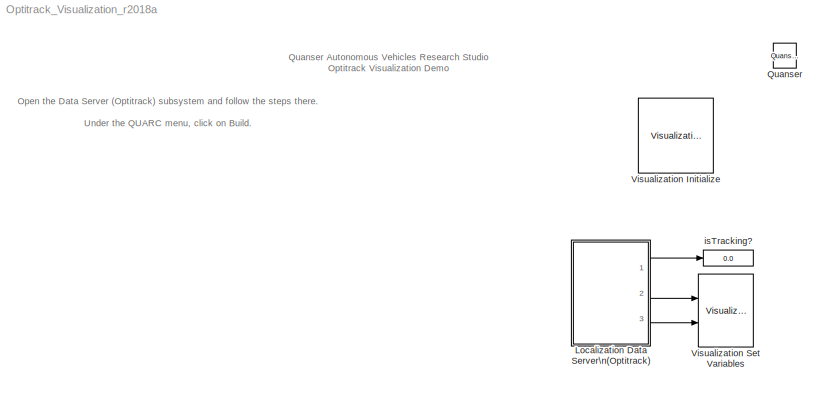
MODEL Optitrack_Visualization_r2018a
KIND model
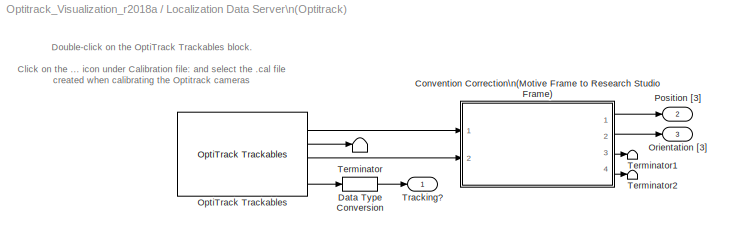
BLOCK [SubSystem] Localization Data Server\n(Optitrack) 
  Ports = [0, 3]
  RequestExecContextInheritance = off
  SID = 165
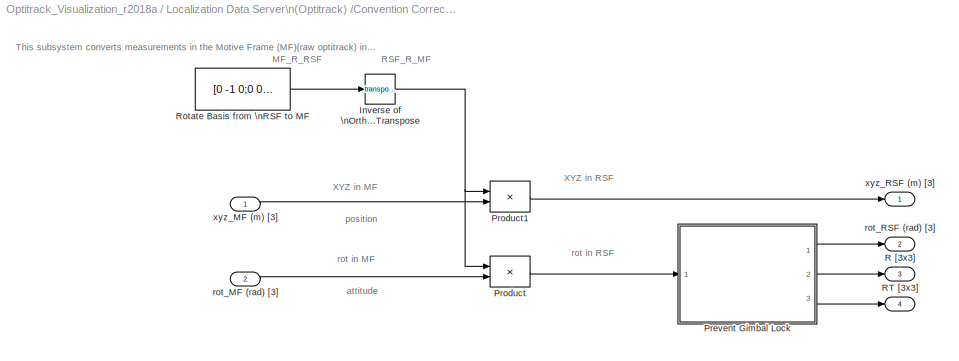
BLOCK [SubSystem] Localization Data Server\n(Optitrack) /Convention Correction\n(Motive Frame to Research Studio Frame)
  Ports = [2, 4]
  RequestExecContextInheritance = off
  SID = 211
BLOCK [Math] Localization Data Server\n(Optitrack) /Convention Correction\n(Motive Frame to Research Studio Frame)/Inverse of \nOrthonormal \nMatrix\nis its \nTranspose
  Operator = transpose
  Ports = [1, 1]
  SID = 214
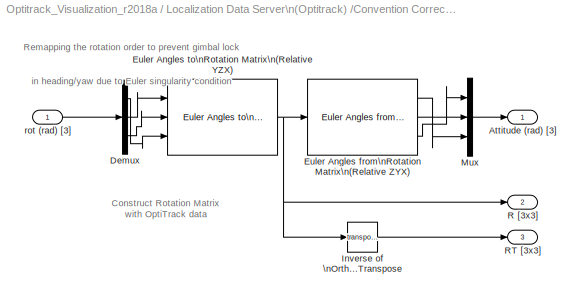
BLOCK [SubSystem] Localization Data Server\n(Optitrack) /Convention Correction\n(Motive Frame to Research Studio Frame)/Prevent Gimbal Lock
  Ports = [1, 3]
  RequestExecContextInheritance = off
  SID = 215
BLOCK [Outport] Localization Data Server\n(Optitrack) /Convention Correction\n(Motive Frame to Research Studio Frame)/Prevent Gimbal Lock/Attitude (rad) [3]
  SID = 221
  VectorParamsAs1DForOutWhenUnconnected = off
BLOCK [Demux] Localization Data Server\n(Optitrack) /Convention Correction\n(Motive Frame to Research Studio Frame)/Prevent Gimbal Lock/Demux
  Outputs = 3
  Ports = [1, 3]
  SID = 217
BLOCK [Reference] Localization Data Server\n(Optitrack) /Convention Correction\n(Motive Frame to Research Studio Frame)/Prevent Gimbal Lock/Euler Angles from\nRotation Matrix\n(Relative ZYX)  REF=quarc_library/Math Operations/Matrices/Euler Angles from\nRotation Matrix
  MultiThreadCoSim = auto
  Ports = [1, 3]
  SID = 218
  SourceBlock = quarc_library/Math Operations/Matrices/Euler Angles from\nRotation Matrix
  SourceProductName = QUARC Targets
  SourceType = Euler Angles from Rotation Matrix
  menu_order = Relative Z-Y-X
BLOCK [Reference] Localization Data Server\n(Optitrack) /Convention Correction\n(Motive Frame to Research Studio Frame)/Prevent Gimbal Lock/Euler Angles to\nRotation Matrix\n(Relative YZX)  REF=quarc_library/Math Operations/Matrices/Euler Angles to\nRotation Matrix
  MultiThreadCoSim = auto
  Ports = [3, 1]
  SID = 219
  SourceBlock = quarc_library/Math Operations/Matrices/Euler Angles to\nRotation Matrix
  SourceProductName = QUARC Targets
  SourceType = Euler Angles to Rotation Matrix
  menu_order = Relative Y-Z-X
BLOCK [Math] Localization Data Server\n(Optitrack) /Convention Correction\n(Motive Frame to Research Studio Frame)/Prevent Gimbal Lock/Inverse of \nOrthonormal \nMatrix\nis its \nTranspose
  Operator = transpose
  Ports = [1, 1]
  SID = 240
BLOCK [Mux] Localization Data Server\n(Optitrack) /Convention Correction\n(Motive Frame to Research Studio Frame)/Prevent Gimbal Lock/Mux
  DisplayOption = bar
  Inputs = 3
  Ports = [3, 1]
  SID = 220
BLOCK [Outport] Localization Data Server\n(Optitrack) /Convention Correction\n(Motive Frame to Research Studio Frame)/Prevent Gimbal Lock/R [3x3]
  Port = 2
  SID = 238
  VectorParamsAs1DForOutWhenUnconnected = off
BLOCK [Outport] Localization Data Server\n(Optitrack) /Convention Correction\n(Motive Frame to Research Studio Frame)/Prevent Gimbal Lock/RT [3x3]
  Port = 3
  SID = 239
  VectorParamsAs1DForOutWhenUnconnected = off
BLOCK [Inport] Localization Data Server\n(Optitrack) /Convention Correction\n(Motive Frame to Research Studio Frame)/Prevent Gimbal Lock/rot (rad) [3]
  SID = 216
BLOCK [Product] Localization Data Server\n(Optitrack) /Convention Correction\n(Motive Frame to Research Studio Frame)/Product
  Multiplication = Matrix(*)
  Ports = [2, 1]
  SID = 223
BLOCK [Product] Localization Data Server\n(Optitrack) /Convention Correction\n(Motive Frame to Research Studio Frame)/Product1
  Multiplication = Matrix(*)
  Ports = [2, 1]
  SID = 224
BLOCK [Outport] Localization Data Server\n(Optitrack) /Convention Correction\n(Motive Frame to Research Studio Frame)/R [3x3]
  Port = 3
  SID = 243
  VectorParamsAs1DForOutWhenUnconnected = off
BLOCK [Outport] Localization Data Server\n(Optitrack) /Convention Correction\n(Motive Frame to Research Studio Frame)/RT [3x3]
  Port = 4
  SID = 244
  VectorParamsAs1DForOutWhenUnconnected = off
BLOCK [Constant] Localization Data Server\n(Optitrack) /Convention Correction\n(Motive Frame to Research Studio Frame)/Rotate Basis from \nRSF to MF
  SID = 225
  Value = [0 -1 0;0 0 1;-1 0 0]
BLOCK [Inport] Localization Data Server\n(Optitrack) /Convention Correction\n(Motive Frame to Research Studio Frame)/rot_MF (rad) [3]
  Port = 2
  SID = 213
BLOCK [Outport] Localization Data Server\n(Optitrack) /Convention Correction\n(Motive Frame to Research Studio Frame)/rot_RSF (rad) [3]
  Port = 2
  SID = 227
  VectorParamsAs1DForOutWhenUnconnected = off
BLOCK [Inport] Localization Data Server\n(Optitrack) /Convention Correction\n(Motive Frame to Research Studio Frame)/xyz_MF (m) [3]
  SID = 212
BLOCK [Outport] Localization Data Server\n(Optitrack) /Convention Correction\n(Motive Frame to Research Studio Frame)/xyz_RSF (m) [3]
  SID = 226
  VectorParamsAs1DForOutWhenUnconnected = off
BLOCK [DataTypeConversion] Localization Data Server\n(Optitrack) /Data Type Conversion
  RndMeth = Floor
  SID = 166
  SaturateOnIntegerOverflow = off
BLOCK [Reference] Localization Data Server\n(Optitrack) /OptiTrack Trackables  REF=quarc_library/Devices/Third-Party/NaturalPoint/OptiTrack/OptiTrack Trackables
  MultiThreadCoSim = auto
  Ports = [0, 4]
  SID = 169
  SourceBlock = quarc_library/Devices/Third-Party/NaturalPoint/OptiTrack/OptiTrack Trackables
  SourceProductName = QUARC Targets
  SourceType = OptiTrack Rigid Body Position
  active = off
  calibration_file = <userpath><path> mm) 2018-05-08 10.cal
  rigid_body_file = <userpath><path>
  rigid_body_ids = [1]
  sample_time = qc_get_step_size*10
BLOCK [Outport] Localization Data Server\n(Optitrack) /Orientation [3]
  Port = 3
  SID = 173
  VectorParamsAs1DForOutWhenUnconnected = off
BLOCK [Outport] Localization Data Server\n(Optitrack) /Position [3]
  Port = 2
  SID = 171
  VectorParamsAs1DForOutWhenUnconnected = off
BLOCK [Terminator] Localization Data Server\n(Optitrack) /Terminator
  SID = 170
BLOCK [Terminator] Localization Data Server\n(Optitrack) /Terminator1
  SID = 245
BLOCK [Terminator] Localization Data Server\n(Optitrack) /Terminator2
  SID = 246
BLOCK [Outport] Localization Data Server\n(Optitrack) /Tracking?
  SID = 172
  VectorParamsAs1DForOutWhenUnconnected = off
BLOCK [Reference] Quanser  REF=quarc_library/Logos/Quanser
  Ports = []
  RTWMemSecDataConstants = Inherit from model
  RTWMemSecDataInternal = Inherit from model
  RTWMemSecDataParameters = Inherit from model
  RTWMemSecFuncExecute = Inherit from model
  RTWMemSecFuncInitTerm = Inherit from model
  SID = 162
  SourceBlock = quarc_library/Logos/Quanser
  SourceProductName = QUARC Targets
  SourceType = Powered by Quanser
BLOCK [Reference] Visualization Initialize  REF=quarc_library/User Interface/Visualization/Visualization Initialize
  AttributesFormatString = %<object_name>
  MultiThreadCoSim = auto
  Ports = []
  SID = 154
  SourceBlock = quarc_library/User Interface/Visualization/Visualization Initialize
  SourceProductName = QUARC Targets
  SourceType = Visualization Initialize
  apply_uri_to_all_configs = off
  client_receive_size = 1000000
  client_send_size = 1000
  close_on_stop = on
  derive_from_server = on
  initial_values = single([ 0 0 0 0 0 0 0 0 0 0 0 0 ])
  object_name = POSE_Check
  open_on_start = on
  scene_file = POSE_Check.xml
  server_receive_size = 1000
  server_send_size = 1000000
  uri = {'normal','';'Configuration','shmem://%m:2';}
  variables = [ 60 61 80 81 ]
BLOCK [Reference] Visualization Set Variables  REF=quarc_library/User Interface/Visualization/Visualization Set Variables
  AttributesFormatString = (%<object_name>)
  MultiThreadCoSim = auto
  Ports = [2]
  SID = 155
  SourceBlock = quarc_library/User Interface/Visualization/Visualization Set Variables
  SourceProductName = QUARC Targets
  SourceType = Visualization Set Variables
  actor_name = {'actor.RefFrame.BodyFixed.OptiTrack/Position';'actor.RefFrame.BodyFixed.OptiTrack/Orientation'}
  data_type = [ 0 0 ]
  length = [ 1 1 ]
  object_name = POSE_Check
  offset = [ 0 0 ]
  sample_time = visualization_get_frame_period
BLOCK [Display] isTracking?
  Decimation = 1
  Ports = [1]
  SID = 188
ANNOTATION (root): \n \n Open the Data Server (Optitrack) subsystem and follow the steps there. \n Under the QUARC menu, click on Build. \n Place the QDrone in the workspace (no battery, QDrone is OFF). \n \n Under the QUARC menu, click on Start . \n The isTracking? display should show 1, which indicates that the localization system is tracking the vehicle's pose. \n \n The Visualization should show 3 frames of refe...<+1052ch>
ANNOTATION (root): \n \n Quanser Autonomous Vehicles Research Studio Optitrack Visualization Demo
ANNOTATION Localization Data Server\n(Optitrack) : \n \n Double-click on the OptiTrack Trackables block. \n Click on the ... icon under Calibration file: and select the .cal file created when calibrating the Optitrack cameras \n Click on the ... icon under Trackables definition file: and select the trackables file created when defining rigid bodies (for the QDrone you are about to use) \n
ANNOTATION Localization Data Server\n(Optitrack) /Convention Correction\n(Motive Frame to Research Studio Frame): \n \n This subsystem converts measurements in the Motive Frame (MF)(raw optitrack) into the Research Studio Frame (RSF).
ANNOTATION Localization Data Server\n(Optitrack) /Convention Correction\n(Motive Frame to Research Studio Frame): MF_R_RSF
ANNOTATION Localization Data Server\n(Optitrack) /Convention Correction\n(Motive Frame to Research Studio Frame): RSF_R_MF
ANNOTATION Localization Data Server\n(Optitrack) /Convention Correction\n(Motive Frame to Research Studio Frame): XYZ in MF
ANNOTATION Localization Data Server\n(Optitrack) /Convention Correction\n(Motive Frame to Research Studio Frame): XYZ in RSF
ANNOTATION Localization Data Server\n(Optitrack) /Convention Correction\n(Motive Frame to Research Studio Frame): attitude
ANNOTATION Localization Data Server\n(Optitrack) /Convention Correction\n(Motive Frame to Research Studio Frame): position
ANNOTATION Localization Data Server\n(Optitrack) /Convention Correction\n(Motive Frame to Research Studio Frame): rot in MF
ANNOTATION Localization Data Server\n(Optitrack) /Convention Correction\n(Motive Frame to Research Studio Frame): rot in RSF
ANNOTATION Localization Data Server\n(Optitrack) /Convention Correction\n(Motive Frame to Research Studio Frame)/Prevent Gimbal Lock: \n \n Remapping the rotation order to prevent gimbal lock \n in heading/yaw due to Euler singularity condition
ANNOTATION Localization Data Server\n(Optitrack) /Convention Correction\n(Motive Frame to Research Studio Frame)/Prevent Gimbal Lock: Construct Rotation Matrix\nwith OptiTrack data
NET Localization Data Server\n(Optitrack) /Convention Correction\n(Motive Frame to Research Studio Frame)/Inverse of \nOrthonormal \nMatrix\nis its \nTranspose:1 -> Localization Data Server\n(Optitrack) /Convention Correction\n(Motive Frame to Research Studio Frame)/Product1:1, Localization Data Server\n(Optitrack) /Convention Correction\n(Motive Frame to Research Studio Frame)/Product:1
LINE Localization Data Server\n(Optitrack) /Convention Correction\n(Motive Frame to Research Studio Frame)/Prevent Gimbal Lock/Demux:1 -> Localization Data Server\n(Optitrack) /Convention Correction\n(Motive Frame to Research Studio Frame)/Prevent Gimbal Lock/Euler Angles to\nRotation Matrix\n(Relative YZX):3
LINE Localization Data Server\n(Optitrack) /Convention Correction\n(Motive Frame to Research Studio Frame)/Prevent Gimbal Lock/Demux:2 -> Localization Data Server\n(Optitrack) /Convention Correction\n(Motive Frame to Research Studio Frame)/Prevent Gimbal Lock/Euler Angles to\nRotation Matrix\n(Relative YZX):1
LINE Localization Data Server\n(Optitrack) /Convention Correction\n(Motive Frame to Research Studio Frame)/Prevent Gimbal Lock/Demux:3 -> Localization Data Server\n(Optitrack) /Convention Correction\n(Motive Frame to Research Studio Frame)/Prevent Gimbal Lock/Euler Angles to\nRotation Matrix\n(Relative YZX):2
LINE Localization Data Server\n(Optitrack) /Convention Correction\n(Motive Frame to Research Studio Frame)/Prevent Gimbal Lock/Euler Angles from\nRotation Matrix\n(Relative ZYX):1 -> Localization Data Server\n(Optitrack) /Convention Correction\n(Motive Frame to Research Studio Frame)/Prevent Gimbal Lock/Mux:3
LINE Localization Data Server\n(Optitrack) /Convention Correction\n(Motive Frame to Research Studio Frame)/Prevent Gimbal Lock/Euler Angles from\nRotation Matrix\n(Relative ZYX):2 -> Localization Data Server\n(Optitrack) /Convention Correction\n(Motive Frame to Research Studio Frame)/Prevent Gimbal Lock/Mux:2
LINE Localization Data Server\n(Optitrack) /Convention Correction\n(Motive Frame to Research Studio Frame)/Prevent Gimbal Lock/Euler Angles from\nRotation Matrix\n(Relative ZYX):3 -> Localization Data Server\n(Optitrack) /Convention Correction\n(Motive Frame to Research Studio Frame)/Prevent Gimbal Lock/Mux:1
NET Localization Data Server\n(Optitrack) /Convention Correction\n(Motive Frame to Research Studio Frame)/Prevent Gimbal Lock/Euler Angles to\nRotation Matrix\n(Relative YZX):1 -> Localization Data Server\n(Optitrack) /Convention Correction\n(Motive Frame to Research Studio Frame)/Prevent Gimbal Lock/Euler Angles from\nRotation Matrix\n(Relative ZYX):1, Localization Data Server\n(Optitrack) /Convention Correction\n(Motive Frame to Research Studio Frame)/Prevent Gimbal Lock/Inverse of \nOrthonormal \nMatrix\nis its \nTranspose:1, Localization Data Server\n(Optitrack) /Convention Correction\n(Motive Frame to Research Studio Frame)/Prevent Gimbal Lock/R [3x3]:1
LINE Localization Data Server\n(Optitrack) /Convention Correction\n(Motive Frame to Research Studio Frame)/Prevent Gimbal Lock/Inverse of \nOrthonormal \nMatrix\nis its \nTranspose:1 -> Localization Data Server\n(Optitrack) /Convention Correction\n(Motive Frame to Research Studio Frame)/Prevent Gimbal Lock/RT [3x3]:1
LINE Localization Data Server\n(Optitrack) /Convention Correction\n(Motive Frame to Research Studio Frame)/Prevent Gimbal Lock/Mux:1 -> Localization Data Server\n(Optitrack) /Convention Correction\n(Motive Frame to Research Studio Frame)/Prevent Gimbal Lock/Attitude (rad) [3]:1
LINE Localization Data Server\n(Optitrack) /Convention Correction\n(Motive Frame to Research Studio Frame)/Prevent Gimbal Lock/rot (rad) [3]:1 -> Localization Data Server\n(Optitrack) /Convention Correction\n(Motive Frame to Research Studio Frame)/Prevent Gimbal Lock/Demux:1
LINE Localization Data Server\n(Optitrack) /Convention Correction\n(Motive Frame to Research Studio Frame)/Prevent Gimbal Lock:1 -> Localization Data Server\n(Optitrack) /Convention Correction\n(Motive Frame to Research Studio Frame)/rot_RSF (rad) [3]:1
LINE Localization Data Server\n(Optitrack) /Convention Correction\n(Motive Frame to Research Studio Frame)/Prevent Gimbal Lock:2 -> Localization Data Server\n(Optitrack) /Convention Correction\n(Motive Frame to Research Studio Frame)/R [3x3]:1
LINE Localization Data Server\n(Optitrack) /Convention Correction\n(Motive Frame to Research Studio Frame)/Prevent Gimbal Lock:3 -> Localization Data Server\n(Optitrack) /Convention Correction\n(Motive Frame to Research Studio Frame)/RT [3x3]:1
LINE Localization Data Server\n(Optitrack) /Convention Correction\n(Motive Frame to Research Studio Frame)/Product1:1 -> Localization Data Server\n(Optitrack) /Convention Correction\n(Motive Frame to Research Studio Frame)/xyz_RSF (m) [3]:1
LINE Localization Data Server\n(Optitrack) /Convention Correction\n(Motive Frame to Research Studio Frame)/Product:1 -> Localization Data Server\n(Optitrack) /Convention Correction\n(Motive Frame to Research Studio Frame)/Prevent Gimbal Lock:1
LINE Localization Data Server\n(Optitrack) /Convention Correction\n(Motive Frame to Research Studio Frame)/Rotate Basis from \nRSF to MF:1 -> Localization Data Server\n(Optitrack) /Convention Correction\n(Motive Frame to Research Studio Frame)/Inverse of \nOrthonormal \nMatrix\nis its \nTranspose:1
LINE Localization Data Server\n(Optitrack) /Convention Correction\n(Motive Frame to Research Studio Frame)/rot_MF (rad) [3]:1 -> Localization Data Server\n(Optitrack) /Convention Correction\n(Motive Frame to Research Studio Frame)/Product:2
LINE Localization Data Server\n(Optitrack) /Convention Correction\n(Motive Frame to Research Studio Frame)/xyz_MF (m) [3]:1 -> Localization Data Server\n(Optitrack) /Convention Correction\n(Motive Frame to Research Studio Frame)/Product1:2
LINE Localization Data Server\n(Optitrack) /Convention Correction\n(Motive Frame to Research Studio Frame):1 -> Localization Data Server\n(Optitrack) /Position [3]:1
LINE Localization Data Server\n(Optitrack) /Convention Correction\n(Motive Frame to Research Studio Frame):2 -> Localization Data Server\n(Optitrack) /Orientation [3]:1
LINE Localization Data Server\n(Optitrack) /Convention Correction\n(Motive Frame to Research Studio Frame):3 -> Localization Data Server\n(Optitrack) /Terminator1:1
LINE Localization Data Server\n(Optitrack) /Convention Correction\n(Motive Frame to Research Studio Frame):4 -> Localization Data Server\n(Optitrack) /Terminator2:1
LINE Localization Data Server\n(Optitrack) /Data Type Conversion:1 -> Localization Data Server\n(Optitrack) /Tracking?:1
LINE Localization Data Server\n(Optitrack) /OptiTrack Trackables:1 -> Localization Data Server\n(Optitrack) /Convention Correction\n(Motive Frame to Research Studio Frame):1
LINE Localization Data Server\n(Optitrack) /OptiTrack Trackables:2 -> Localization Data Server\n(Optitrack) /Terminator:1
LINE Localization Data Server\n(Optitrack) /OptiTrack Trackables:3 -> Localization Data Server\n(Optitrack) /Convention Correction\n(Motive Frame to Research Studio Frame):2
LINE Localization Data Server\n(Optitrack) /OptiTrack Trackables:4 -> Localization Data Server\n(Optitrack) /Data Type Conversion:1
LINE Localization Data Server\n(Optitrack) :1 -> isTracking?:1
LINE Localization Data Server\n(Optitrack) :2 -> Visualization Set Variables:1
LINE Localization Data Server\n(Optitrack) :3 -> Visualization Set Variables:2
note: NET lines group one-source signal fan-out (src -> all destinations, sorted); 1:1 wires keep LINE
note: 2 file-system paths scrubbed to <path> (not preserved elsewhere — flat text is the only slx artifact)
